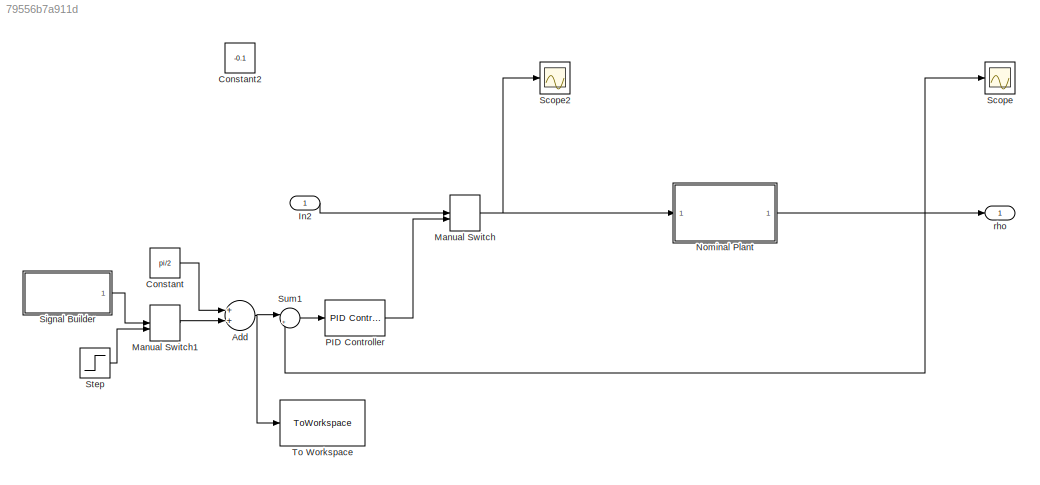
MODEL slx_79556b7a911d
KIND model
BLOCK [Sum] Add
  InputSameDT = off
  OutDataTypeStr = Inherit: Inherit via internal rule
  Ports = [2, 1]
  SaturateOnIntegerOverflow = off
BLOCK [Constant] Constant
  Value = pi/2
BLOCK [Constant] Constant2
  Value = -0.1
BLOCK [Inport] In2
  IconDisplay = Port number
BLOCK [ManualSwitch] Manual Switch
BLOCK [ManualSwitch] Manual Switch1
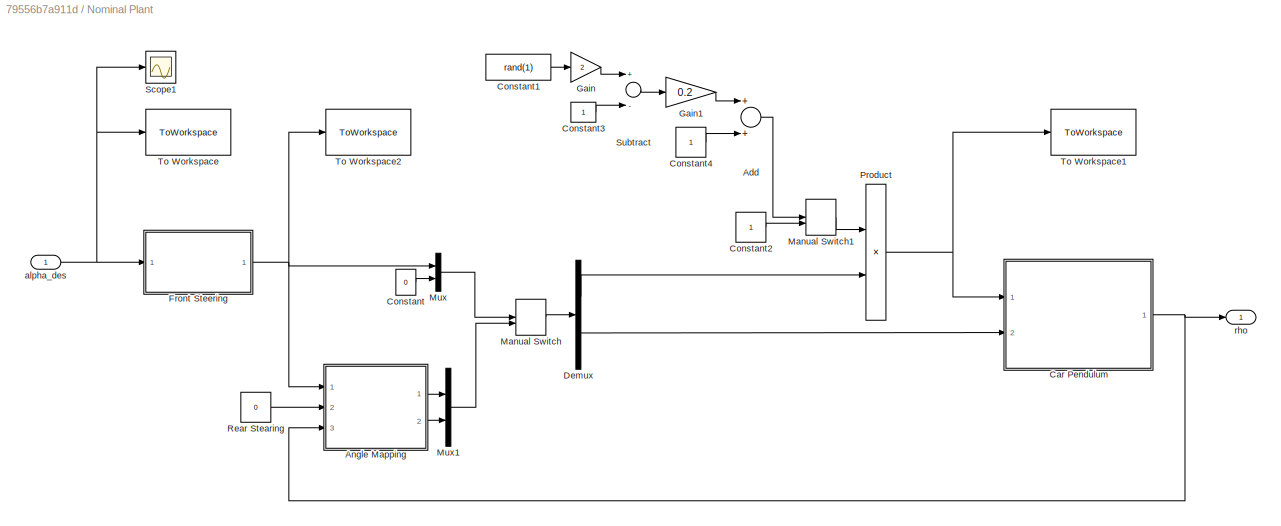
BLOCK [SubSystem] Nominal Plant
  FunctionWithSeparateData = off
  MaskHideContents = off
  MinAlgLoopOccurrences = off
  Opaque = off
  Ports = [1, 1]
  PropExecContextOutsideSubsystem = off
  RTWSystemCode = Auto
  RequestExecContextInheritance = off
BLOCK [Sum] Nominal Plant/Add
  InputSameDT = off
  OutDataTypeStr = Inherit: Inherit via internal rule
  Ports = [2, 1]
  SaturateOnIntegerOverflow = off
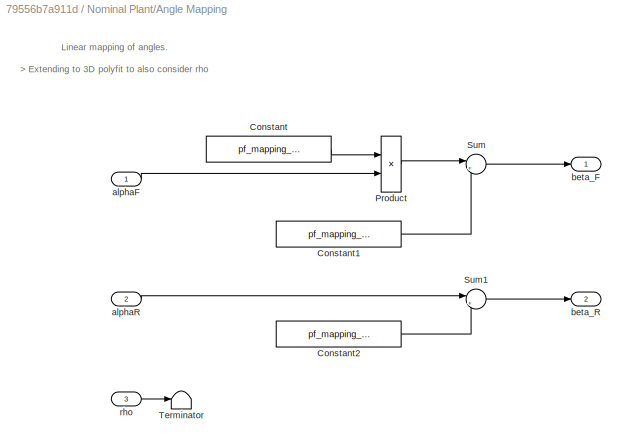
BLOCK [SubSystem] Nominal Plant/Angle Mapping
  FunctionWithSeparateData = off
  MaskHideContents = off
  MinAlgLoopOccurrences = off
  Opaque = off
  Ports = [3, 2]
  PropExecContextOutsideSubsystem = off
  RTWSystemCode = Auto
  RequestExecContextInheritance = off
BLOCK [Constant] Nominal Plant/Angle Mapping/Constant
  Value = pf_mapping_1st_FR(1)
BLOCK [Constant] Nominal Plant/Angle Mapping/Constant1
  Value = pf_mapping_1st_FR(2)
BLOCK [Constant] Nominal Plant/Angle Mapping/Constant2
  Value = pf_mapping_1st_RR(1)
BLOCK [Product] Nominal Plant/Angle Mapping/Product
  InputSameDT = off
  OutDataTypeStr = Inherit: Inherit via internal rule
  Ports = [2, 1]
  RndMeth = Floor
  SaturateOnIntegerOverflow = off
BLOCK [Sum] Nominal Plant/Angle Mapping/Sum
  IconShape = round
  InputSameDT = off
  Inputs = |++
  OutDataTypeStr = Inherit: Inherit via internal rule
  Ports = [2, 1]
  SaturateOnIntegerOverflow = off
BLOCK [Sum] Nominal Plant/Angle Mapping/Sum1
  IconShape = round
  InputSameDT = off
  Inputs = |++
  OutDataTypeStr = Inherit: Inherit via internal rule
  Ports = [2, 1]
  SaturateOnIntegerOverflow = off
BLOCK [Terminator] Nominal Plant/Angle Mapping/Terminator
BLOCK [Inport] Nominal Plant/Angle Mapping/alphaF
  IconDisplay = Port number
BLOCK [Inport] Nominal Plant/Angle Mapping/alphaR
  IconDisplay = Port number
  Port = 2
BLOCK [Outport] Nominal Plant/Angle Mapping/beta_F
  IconDisplay = Port number
BLOCK [Outport] Nominal Plant/Angle Mapping/beta_R
  IconDisplay = Port number
  Port = 2
BLOCK [Inport] Nominal Plant/Angle Mapping/rho
  IconDisplay = Port number
  Port = 3
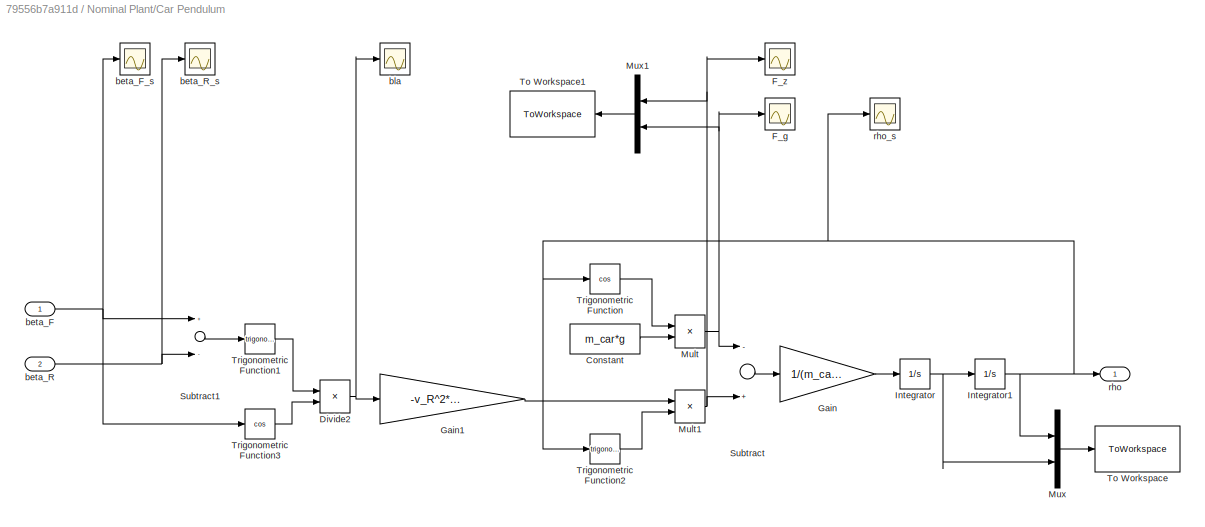
BLOCK [SubSystem] Nominal Plant/Car Pendulum
  FunctionWithSeparateData = off
  MaskHideContents = off
  MinAlgLoopOccurrences = off
  Opaque = off
  Ports = [2, 1]
  PropExecContextOutsideSubsystem = off
  RTWSystemCode = Auto
  RequestExecContextInheritance = off
BLOCK [Constant] Nominal Plant/Car Pendulum/Constant
  Value = m_car*g
BLOCK [Product] Nominal Plant/Car Pendulum/Divide2
  InputSameDT = off
  Inputs = */
  OutDataTypeStr = Inherit: Inherit via internal rule
  Ports = [2, 1]
  RndMeth = Floor
  SaturateOnIntegerOverflow = off
BLOCK [Scope] Nominal Plant/Car Pendulum/F_g
  DataFormat = StructureWithTime
  Floating = off
  NumInputPorts = 1
  Ports = [1]
  SampleTime = 0
  SaveName = ScopeData2
  ShowLegends = off
BLOCK [Scope] Nominal Plant/Car Pendulum/F_z
  DataFormat = StructureWithTime
  Floating = off
  NumInputPorts = 1
  Ports = [1]
  SampleTime = 0
  SaveName = ScopeData1
  ShowLegends = off
BLOCK [Gain] Nominal Plant/Car Pendulum/Gain
  Gain = 1/(m_car*l_p)
  OutDataTypeStr = Inherit: Inherit via internal rule
  ParamDataTypeStr = Inherit: Inherit via internal rule
  SaturateOnIntegerOverflow = off
BLOCK [Gain] Nominal Plant/Car Pendulum/Gain1
  Gain = -v_R^2*m_car/l_w
  OutDataTypeStr = Inherit: Inherit via internal rule
  ParamDataTypeStr = Inherit: Inherit via internal rule
  SaturateOnIntegerOverflow = off
BLOCK [Integrator] Nominal Plant/Car Pendulum/Integrator
  ContinuousStateAttributes = 'rho_dot'
  Ports = [1, 1]
BLOCK [Integrator] Nominal Plant/Car Pendulum/Integrator1
  ContinuousStateAttributes = 'rho'
  InitialCondition = pi/2+0.01
  Ports = [1, 1]
BLOCK [Product] Nominal Plant/Car Pendulum/Mult
  InputSameDT = off
  Inputs = **
  OutDataTypeStr = Inherit: Inherit via internal rule
  Ports = [2, 1]
  RndMeth = Floor
  SaturateOnIntegerOverflow = off
BLOCK [Product] Nominal Plant/Car Pendulum/Mult1
  InputSameDT = off
  Inputs = **
  OutDataTypeStr = Inherit: Inherit via internal rule
  Ports = [2, 1]
  RndMeth = Floor
  SaturateOnIntegerOverflow = off
BLOCK [Mux] Nominal Plant/Car Pendulum/Mux
  DisplayOption = bar
  Inputs = 2
  Ports = [2, 1]
BLOCK [Mux] Nominal Plant/Car Pendulum/Mux1
  DisplayOption = bar
  Inputs = 2
  Ports = [2, 1]
BLOCK [Sum] Nominal Plant/Car Pendulum/Subtract
  InputSameDT = off
  Inputs = -+
  OutDataTypeStr = Inherit: Inherit via internal rule
  Ports = [2, 1]
  SaturateOnIntegerOverflow = off
BLOCK [Sum] Nominal Plant/Car Pendulum/Subtract1
  InputSameDT = off
  Inputs = +-
  OutDataTypeStr = Inherit: Inherit via internal rule
  Ports = [2, 1]
  SaturateOnIntegerOverflow = off
BLOCK [ToWorkspace] Nominal Plant/Car Pendulum/To Workspace
  MaxDataPoints = inf
  Ports = [1]
  SampleTime = -1
  SaveFormat = Timeseries
  VariableName = rho
BLOCK [ToWorkspace] Nominal Plant/Car Pendulum/To Workspace1
  MaxDataPoints = inf
  Ports = [1]
  SampleTime = -1
  SaveFormat = Timeseries
  VariableName = forces
BLOCK [Trigonometry] Nominal Plant/Car Pendulum/Trigonometric Function
  Operator = cos
  Ports = [1, 1]
BLOCK [Trigonometry] Nominal Plant/Car Pendulum/Trigonometric Function1
  Ports = [1, 1]
BLOCK [Trigonometry] Nominal Plant/Car Pendulum/Trigonometric Function2
  Ports = [1, 1]
BLOCK [Trigonometry] Nominal Plant/Car Pendulum/Trigonometric Function3
  Operator = cos
  Ports = [1, 1]
BLOCK [Inport] Nominal Plant/Car Pendulum/beta_F
  IconDisplay = Port number
BLOCK [Scope] Nominal Plant/Car Pendulum/beta_F_s
  DataFormat = StructureWithTime
  Floating = off
  NumInputPorts = 1
  Ports = [1]
  SampleTime = 0
  SaveName = ScopeData7
  ShowLegends = off
BLOCK [Inport] Nominal Plant/Car Pendulum/beta_R
  IconDisplay = Port number
  Port = 2
BLOCK [Scope] Nominal Plant/Car Pendulum/beta_R_s 
  DataFormat = StructureWithTime
  Floating = off
  NumInputPorts = 1
  Ports = [1]
  SampleTime = 0
  SaveName = ScopeData9
  ShowLegends = off
BLOCK [Scope] Nominal Plant/Car Pendulum/bla
  DataFormat = StructureWithTime
  Floating = off
  NumInputPorts = 1
  Ports = [1]
  SampleTime = 0
  SaveName = ScopeData10
  ShowLegends = off
BLOCK [Outport] Nominal Plant/Car Pendulum/rho
  IconDisplay = Port number
BLOCK [Scope] Nominal Plant/Car Pendulum/rho_s
  DataFormat = StructureWithTime
  Floating = off
  NumInputPorts = 1
  Ports = [1]
  SampleTime = 0
  SaveName = ScopeData3
  ShowLegends = off
BLOCK [Constant] Nominal Plant/Constant
  Value = 0
BLOCK [Constant] Nominal Plant/Constant1
  Value = rand(1)
BLOCK [Constant] Nominal Plant/Constant2
BLOCK [Constant] Nominal Plant/Constant3
BLOCK [Constant] Nominal Plant/Constant4
BLOCK [Demux] Nominal Plant/Demux
  DisplayOption = bar
  Outputs = 2
  Ports = [1, 2]
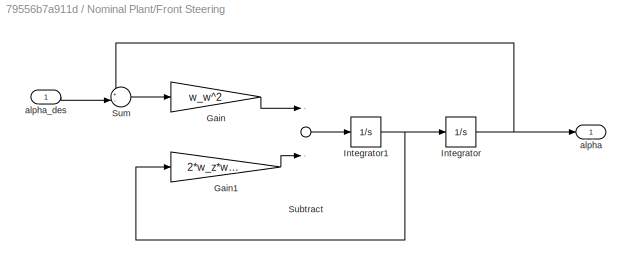
BLOCK [SubSystem] Nominal Plant/Front Steering
  FunctionWithSeparateData = off
  MaskHideContents = off
  MinAlgLoopOccurrences = off
  Opaque = off
  Ports = [1, 1]
  PropExecContextOutsideSubsystem = off
  RTWSystemCode = Auto
  RequestExecContextInheritance = off
BLOCK [Gain] Nominal Plant/Front Steering/Gain
  Gain = w_w^2
  OutDataTypeStr = Inherit: Inherit via internal rule
  ParamDataTypeStr = Inherit: Inherit via internal rule
  SaturateOnIntegerOverflow = off
BLOCK [Gain] Nominal Plant/Front Steering/Gain1
  Gain = 2*w_z*w_w
  OutDataTypeStr = Inherit: Inherit via internal rule
  ParamDataTypeStr = Inherit: Inherit via internal rule
  SaturateOnIntegerOverflow = off
BLOCK [Integrator] Nominal Plant/Front Steering/Integrator
  Ports = [1, 1]
BLOCK [Integrator] Nominal Plant/Front Steering/Integrator1
  Ports = [1, 1]
BLOCK [Sum] Nominal Plant/Front Steering/Subtract
  InputSameDT = off
  Inputs = --
  OutDataTypeStr = Inherit: Inherit via internal rule
  Ports = [2, 1]
  SaturateOnIntegerOverflow = off
BLOCK [Sum] Nominal Plant/Front Steering/Sum
  IconShape = round
  InputSameDT = off
  Inputs = +-|
  OutDataTypeStr = Inherit: Inherit via internal rule
  Ports = [2, 1]
  SaturateOnIntegerOverflow = off
BLOCK [Outport] Nominal Plant/Front Steering/alpha
  IconDisplay = Port number
BLOCK [Inport] Nominal Plant/Front Steering/alpha_des
  IconDisplay = Port number
BLOCK [Gain] Nominal Plant/Gain
  Gain = 2
  OutDataTypeStr = Inherit: Inherit via internal rule
  ParamDataTypeStr = Inherit: Inherit via internal rule
  SaturateOnIntegerOverflow = off
BLOCK [Gain] Nominal Plant/Gain1
  Gain = 0.2
  OutDataTypeStr = Inherit: Inherit via internal rule
  ParamDataTypeStr = Inherit: Inherit via internal rule
  SaturateOnIntegerOverflow = off
BLOCK [ManualSwitch] Nominal Plant/Manual Switch
  CurrentSetting = 0
BLOCK [ManualSwitch] Nominal Plant/Manual Switch1
  CurrentSetting = 0
BLOCK [Mux] Nominal Plant/Mux
  DisplayOption = bar
  Inputs = 2
  Ports = [2, 1]
BLOCK [Mux] Nominal Plant/Mux1
  DisplayOption = bar
  Inputs = 2
  Ports = [2, 1]
BLOCK [Product] Nominal Plant/Product
  InputSameDT = off
  OutDataTypeStr = Inherit: Inherit via internal rule
  Ports = [2, 1]
  RndMeth = Floor
  SaturateOnIntegerOverflow = off
BLOCK [Constant] Nominal Plant/Rear Stearing
  Value = 0
BLOCK [Scope] Nominal Plant/Scope1
  DataFormat = StructureWithTime
  Floating = off
  NumInputPorts = 1
  Ports = [1]
  SampleTime = 0
  SaveName = ScopeData5
  ShowLegends = off
BLOCK [Sum] Nominal Plant/Subtract
  InputSameDT = off
  Inputs = +-
  OutDataTypeStr = Inherit: Inherit via internal rule
  Ports = [2, 1]
  SaturateOnIntegerOverflow = off
BLOCK [ToWorkspace] Nominal Plant/To Workspace
  MaxDataPoints = inf
  Ports = [1]
  SampleTime = -1
  SaveFormat = Timeseries
  VariableName = alpha_des
BLOCK [ToWorkspace] Nominal Plant/To Workspace1
  MaxDataPoints = inf
  Ports = [1]
  SampleTime = -1
  SaveFormat = Timeseries
  VariableName = beta_F
BLOCK [ToWorkspace] Nominal Plant/To Workspace2
  MaxDataPoints = inf
  Ports = [1]
  SampleTime = -1
  SaveFormat = Timeseries
  VariableName = alpha
BLOCK [Inport] Nominal Plant/alpha_des
  IconDisplay = Port number
BLOCK [Outport] Nominal Plant/rho
  IconDisplay = Port number
BLOCK [Reference] PID Controller  REF=simulink/Continuous/PID Controller
  AntiWindupMode = clamping
  Controller = PID
  D = -0.950175409057611
  DOutDataTypeStr = Inherit: Inherit via internal rule
  DOutMax = []
  DOutMin = []
  DParamDataTypeStr = Inherit: Inherit via internal rule
  DParamMax = []
  DParamMin = []
  ExternalReset = none
  FilterContinuousStateAttributes = ''
  FilterMethod = Forward Euler
  FilterOutDataTypeStr = Inherit: Inherit via internal rule
  FilterOutMax = []
  FilterOutMin = []
  FilterRTWStateStorageClass = Auto
  FilterStateMustResolveToSignalObject = off
  Form = Parallel
  I = -19.0340165023438
  IOutDataTypeStr = Inherit: Inherit via internal rule
  IOutMax = []
  IOutMin = []
  IParamDataTypeStr = Inherit: Inherit via internal rule
  IParamMax = []
  IParamMin = []
  IgnoreLimit = off
  InitialConditionForFilter = 0
  InitialConditionForIntegrator = 0
  InitialConditionSource = internal
  IntegratorContinuousStateAttributes = ''
  IntegratorMethod = Forward Euler
  IntegratorOutDataTypeStr = Inherit: Inherit via internal rule
  IntegratorOutMax = []
  IntegratorOutMin = []
  IntegratorRTWStateStorageClass = Auto
  IntegratorStateMustResolveToSignalObject = off
  Kb = 1
  KbOutDataTypeStr = Inherit: Inherit via internal rule
  KbOutMax = []
  KbOutMin = []
  KbParamDataTypeStr = Inherit: Inherit via internal rule
  KbParamMax = []
  KbParamMin = []
  Kt = 1
  KtOutDataTypeStr = Inherit: Inherit via internal rule
  KtOutMax = []
  KtOutMin = []
  KtParamDataTypeStr = Inherit: Inherit via internal rule
  KtParamMax = []
  KtParamMin = []
  LimitOutput = on
  LinearizeAsGain = on
  LockScale = off
  LowerSaturationLimit = -0.25
  N = 2063.34499437718
  NOutDataTypeStr = Inherit: Inherit via internal rule
  NOutMax = []
  NOutMin = []
  NParamDataTypeStr = Inherit: Inherit via internal rule
  NParamMax = []
  NParamMin = []
  P = -8.56007878197074
  POutDataTypeStr = Inherit: Inherit via internal rule
  POutMax = []
  POutMin = []
  PParamDataTypeStr = Inherit: Inherit via internal rule
  PParamMax = []
  PParamMin = []
  Ports = [1, 1]
  RndMeth = Floor
  SampleTime = 1
  SaturateOnIntegerOverflow = off
  SaturationOutDataTypeStr = Inherit: Same as input
  SaturationOutMax = []
  SaturationOutMin = []
  SourceBlock = simulink/Continuous/PID Controller
  SourceType = PID 1dof
  SumAccumDataTypeStr = Inherit: Inherit via internal rule
  SumDAccumDataTypeStr = Inherit: Inherit via internal rule
  SumDOutDataTypeStr = Inherit: Inherit via internal rule
  SumDOutMax = []
  SumDOutMin = []
  SumI1AccumDataTypeStr = Inherit: Inherit via internal rule
  SumI1OutDataTypeStr = Inherit: Inherit via internal rule
  SumI1OutMax = []
  SumI1OutMin = []
  SumI2AccumDataTypeStr = Inherit: Inherit via internal rule
  SumI2OutDataTypeStr = Inherit: Inherit via internal rule
  SumI2OutMax = []
  SumI2OutMin = []
  SumI3AccumDataTypeStr = Inherit: Inherit via internal rule
  SumI3OutDataTypeStr = Inherit: Inherit via internal rule
  SumI3OutMax = []
  SumI3OutMin = []
  SumOutDataTypeStr = Inherit: Inherit via internal rule
  SumOutMax = []
  SumOutMin = []
  TimeDomain = Continuous-time
  TrackingMode = off
  UpperSaturationLimit = 0.25
  ZeroCross = on
BLOCK [Scope] Scope
  DataFormat = StructureWithTime
  Floating = off
  NumInputPorts = 1
  Ports = [1]
  SampleTime = 0
  ShowLegends = off
BLOCK [Scope] Scope2
  DataFormat = StructureWithTime
  Floating = off
  NumInputPorts = 1
  Ports = [1]
  SampleTime = 0
  SaveName = ScopeData8
  ShowLegends = off
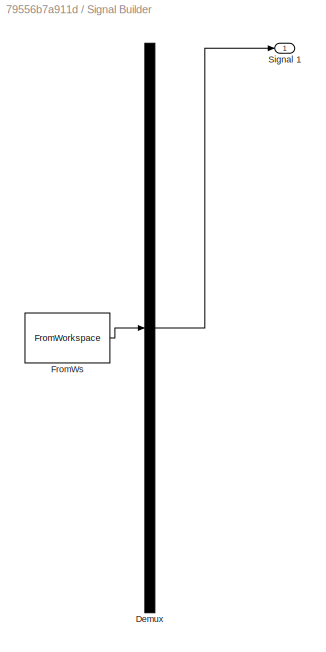
BLOCK [SubSystem] Signal Builder
  ClipboardFcn = sigbuilder_block('clipboard');
  CloseFcn = sigbuilder_block('close');
  ContinueFcn = sigbuilder_block('continue');
  CopyFcn = sigbuilder_block('copy');
  DeleteFcn = sigbuilder_block('delete');
  FunctionWithSeparateData = off
  LoadFcn = sigbuilder_block('load');
  MaskHideContents = on
  MinAlgLoopOccurrences = off
  ModelCloseFcn = sigbuilder_block('modelClose');
  NameChangeFcn = sigbuilder_block('namechange');
  Opaque = off
  OpenFcn = sigbuilder_block('open',[151.5 69 550.5 395.25 ]);
  PauseFcn = sigbuilder_block('pause');
  Ports = [0, 1]
  PreSaveFcn = sigbuilder_block('preSave');
  PropExecContextOutsideSubsystem = off
  RTWSystemCode = Auto
  RequestExecContextInheritance = off
  StartFcn = sigbuilder_block('start');
  StopFcn = sigbuilder_block('stop');
  Tag = STV Subsys
BLOCK [Demux] Signal Builder/Demux
  Outputs = 1
  Ports = [1, 1]
  Tag = STV Demux
BLOCK [FromWorkspace] Signal Builder/FromWs
  SampleTime = 0.01
  Tag = STV FromWs
  VariableName = tuvar
  ZeroCross = on
BLOCK [Outport] Signal Builder/Signal 1
  IconDisplay = Port number
  Tag = STV Outport
BLOCK [Step] Step
  After = 0.3
  SampleTime = 0.01
BLOCK [Sum] Sum1
  IconShape = round
  InputSameDT = off
  Inputs = |+-
  OutDataTypeStr = Inherit: Inherit via internal rule
  Ports = [2, 1]
  SaturateOnIntegerOverflow = off
BLOCK [ToWorkspace] To Workspace
  MaxDataPoints = inf
  Ports = [1]
  SampleTime = -1
  SaveFormat = Timeseries
  VariableName = rho_des
BLOCK [Outport] rho
  IconDisplay = Port number
ANNOTATION Nominal Plant/Angle Mapping: Linear mapping of angles. > Extending to 3D polyfit to also consider rho
NET Add:1 -> Sum1:1, To Workspace:1
LINE Constant:1 -> Add:1
LINE In2:1 -> Manual Switch:1
LINE Manual Switch1:1 -> Add:2
NET Manual Switch:1 -> Nominal Plant:1, Scope2:1
LINE Nominal Plant/Add:1 -> Nominal Plant/Manual Switch1:1
LINE Nominal Plant/Angle Mapping/Constant1:1 -> Nominal Plant/Angle Mapping/Sum:2
LINE Nominal Plant/Angle Mapping/Constant2:1 -> Nominal Plant/Angle Mapping/Sum1:2
LINE Nominal Plant/Angle Mapping/Constant:1 -> Nominal Plant/Angle Mapping/Product:1
LINE Nominal Plant/Angle Mapping/Product:1 -> Nominal Plant/Angle Mapping/Sum:1
LINE Nominal Plant/Angle Mapping/Sum1:1 -> Nominal Plant/Angle Mapping/beta_R:1
LINE Nominal Plant/Angle Mapping/Sum:1 -> Nominal Plant/Angle Mapping/beta_F:1
LINE Nominal Plant/Angle Mapping/alphaF:1 -> Nominal Plant/Angle Mapping/Product:2
LINE Nominal Plant/Angle Mapping/alphaR:1 -> Nominal Plant/Angle Mapping/Sum1:1
LINE Nominal Plant/Angle Mapping/rho:1 -> Nominal Plant/Angle Mapping/Terminator:1
LINE Nominal Plant/Angle Mapping:1 -> Nominal Plant/Mux1:1
LINE Nominal Plant/Angle Mapping:2 -> Nominal Plant/Mux1:2
LINE Nominal Plant/Car Pendulum/Constant:1 -> Nominal Plant/Car Pendulum/Mult:2
NET Nominal Plant/Car Pendulum/Divide2:1 -> Nominal Plant/Car Pendulum/Gain1:1, Nominal Plant/Car Pendulum/bla:1
LINE Nominal Plant/Car Pendulum/Gain1:1 -> Nominal Plant/Car Pendulum/Mult1:1
LINE Nominal Plant/Car Pendulum/Gain:1 -> Nominal Plant/Car Pendulum/Integrator:1
NET Nominal Plant/Car Pendulum/Integrator1:1 -> Nominal Plant/Car Pendulum/Mux:1, Nominal Plant/Car Pendulum/Trigonometric Function2:1, Nominal Plant/Car Pendulum/Trigonometric Function:1, Nominal Plant/Car Pendulum/rho:1, Nominal Plant/Car Pendulum/rho_s:1
NET Nominal Plant/Car Pendulum/Integrator:1 -> Nominal Plant/Car Pendulum/Integrator1:1, Nominal Plant/Car Pendulum/Mux:2
NET Nominal Plant/Car Pendulum/Mult1:1 -> Nominal Plant/Car Pendulum/F_z:1, Nominal Plant/Car Pendulum/Mux1:1, Nominal Plant/Car Pendulum/Subtract:2
NET Nominal Plant/Car Pendulum/Mult:1 -> Nominal Plant/Car Pendulum/F_g:1, Nominal Plant/Car Pendulum/Mux1:2, Nominal Plant/Car Pendulum/Subtract:1
LINE Nominal Plant/Car Pendulum/Mux1:1 -> Nominal Plant/Car Pendulum/To Workspace1:1
LINE Nominal Plant/Car Pendulum/Mux:1 -> Nominal Plant/Car Pendulum/To Workspace:1
LINE Nominal Plant/Car Pendulum/Subtract1:1 -> Nominal Plant/Car Pendulum/Trigonometric Function1:1
LINE Nominal Plant/Car Pendulum/Subtract:1 -> Nominal Plant/Car Pendulum/Gain:1
LINE Nominal Plant/Car Pendulum/Trigonometric Function1:1 -> Nominal Plant/Car Pendulum/Divide2:1
LINE Nominal Plant/Car Pendulum/Trigonometric Function2:1 -> Nominal Plant/Car Pendulum/Mult1:2
LINE Nominal Plant/Car Pendulum/Trigonometric Function3:1 -> Nominal Plant/Car Pendulum/Divide2:2
LINE Nominal Plant/Car Pendulum/Trigonometric Function:1 -> Nominal Plant/Car Pendulum/Mult:1
NET Nominal Plant/Car Pendulum/beta_F:1 -> Nominal Plant/Car Pendulum/Subtract1:1, Nominal Plant/Car Pendulum/Trigonometric Function3:1, Nominal Plant/Car Pendulum/beta_F_s:1
NET Nominal Plant/Car Pendulum/beta_R:1 -> Nominal Plant/Car Pendulum/Subtract1:2, Nominal Plant/Car Pendulum/beta_R_s :1
NET Nominal Plant/Car Pendulum:1 -> Nominal Plant/Angle Mapping:3, Nominal Plant/rho:1
LINE Nominal Plant/Constant1:1 -> Nominal Plant/Gain:1
LINE Nominal Plant/Constant2:1 -> Nominal Plant/Manual Switch1:2
LINE Nominal Plant/Constant3:1 -> Nominal Plant/Subtract:2
LINE Nominal Plant/Constant4:1 -> Nominal Plant/Add:2
LINE Nominal Plant/Constant:1 -> Nominal Plant/Mux:2
LINE Nominal Plant/Demux:1 -> Nominal Plant/Product:2
LINE Nominal Plant/Demux:2 -> Nominal Plant/Car Pendulum:2
LINE Nominal Plant/Front Steering/Gain1:1 -> Nominal Plant/Front Steering/Subtract:2
LINE Nominal Plant/Front Steering/Gain:1 -> Nominal Plant/Front Steering/Subtract:1
NET Nominal Plant/Front Steering/Integrator1:1 -> Nominal Plant/Front Steering/Gain1:1, Nominal Plant/Front Steering/Integrator:1
NET Nominal Plant/Front Steering/Integrator:1 -> Nominal Plant/Front Steering/Sum:1, Nominal Plant/Front Steering/alpha:1
LINE Nominal Plant/Front Steering/Subtract:1 -> Nominal Plant/Front Steering/Integrator1:1
LINE Nominal Plant/Front Steering/Sum:1 -> Nominal Plant/Front Steering/Gain:1
LINE Nominal Plant/Front Steering/alpha_des:1 -> Nominal Plant/Front Steering/Sum:2
NET Nominal Plant/Front Steering:1 -> Nominal Plant/Angle Mapping:1, Nominal Plant/Mux:1, Nominal Plant/To Workspace2:1
LINE Nominal Plant/Gain1:1 -> Nominal Plant/Add:1
LINE Nominal Plant/Gain:1 -> Nominal Plant/Subtract:1
LINE Nominal Plant/Manual Switch1:1 -> Nominal Plant/Product:1
LINE Nominal Plant/Manual Switch:1 -> Nominal Plant/Demux:1
LINE Nominal Plant/Mux1:1 -> Nominal Plant/Manual Switch:2
LINE Nominal Plant/Mux:1 -> Nominal Plant/Manual Switch:1
NET Nominal Plant/Product:1 -> Nominal Plant/Car Pendulum:1, Nominal Plant/To Workspace1:1
LINE Nominal Plant/Rear Stearing:1 -> Nominal Plant/Angle Mapping:2
LINE Nominal Plant/Subtract:1 -> Nominal Plant/Gain1:1
NET Nominal Plant/alpha_des:1 -> Nominal Plant/Front Steering:1, Nominal Plant/Scope1:1, Nominal Plant/To Workspace:1
NET Nominal Plant:1 -> Scope:1, Sum1:2, rho:1
LINE PID Controller:1 -> Manual Switch:2
LINE Signal Builder:1 -> Manual Switch1:1
LINE Step:1 -> Manual Switch1:2
LINE Sum1:1 -> PID Controller:1
note: NET lines group one-source signal fan-out (src -> all destinations, sorted); 1:1 wires keep LINE
